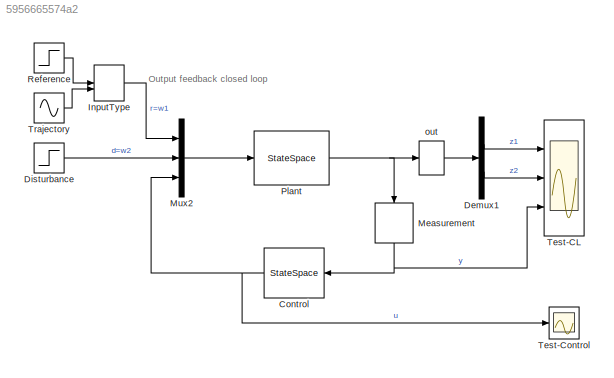
MODEL slx_5956665574a2
KIND model
CONFIG AbsTol = auto
CONFIG EnableMultiTasking = on
CONFIG FixedStep = auto
CONFIG MaxStep = auto
CONFIG MinStep = auto
CONFIG RelTol = 1e-3
CONFIG SampleTimeConstraint = Unconstrained
CONFIG Solver = VariableStepAuto
CONFIG SolverName = VariableStepAuto
CONFIG StartTime = 0.0
CONFIG StopTime = 20
BLOCK [StateSpace] Control
  A = Ksys.A
  B = Ksys.B
  C = Ksys.C
  D = Ksys.D
  Ports = [1, 1]
  X0 = xK0
BLOCK [Demux] Demux1
  DisplayOption = bar
  Outputs = 2
  Ports = [1, 2]
BLOCK [Step] Disturbance
  After = dist
  SampleTime = 0
  Time = Tdist
BLOCK [ManualSwitch] InputType
BLOCK [Selector] Measurement
  IndexOptions = Index vector (dialog)
  Indices = [4]
  InputPortWidth = 4
  OutputSizes = 1
  Ports = [1, 1]
BLOCK [Mux] Mux2
  DisplayOption = bar
  Inputs = 3
  Ports = [3, 1]
BLOCK [StateSpace] Plant
  A = P.A
  B = P.B
  C = P.C
  D = P.D
  Ports = [1, 1]
  X0 = x0
BLOCK [Step] Reference
  After = ref
  SampleTime = 0
  Time = Tref
BLOCK [Scope] Test-CL
  NumInputPorts = 3
  Ports = [3]
  ScopeSpecificationString = Simulink.scopes.TimeScopeBlockCfg('CurrentConfiguration', extmgr.ConfigurationSet(extmgr.Configuration('Core','General UI',true),extmgr.Configuration('Core','Source UI',true),extmgr.Configuration('Sources','WiredSimulink',true,'DataLoggingVariableName','simulation_test','DataLogging',true,'DataLoggingSaveFormat','StructureWithTime'),extmgr.Configuration('Visuals','Time Domain',true,'SerializedDisp...<+2792ch>
BLOCK [Scope] Test-Control
  NumInputPorts = 1
  Ports = [1]
  ScopeSpecificationString = Simulink.scopes.TimeScopeBlockCfg('CurrentConfiguration', extmgr.ConfigurationSet(extmgr.Configuration('Core','General UI',true),extmgr.Configuration('Core','Source UI',true),extmgr.Configuration('Sources','WiredSimulink',true,'DataLoggingVariableName','control_test','DataLogging',true,'DataLoggingSaveFormat','StructureWithTime'),extmgr.Configuration('Visuals','Time Domain',true,'SerializedDisplay...<+1514ch>
BLOCK [Sin] Trajectory
  Frequency = 0.5
  Ports = [0, 1]
  SampleTime = 0
BLOCK [Selector] out
  IndexOptions = Index vector (dialog)
  Indices = [1 2]
  InputPortWidth = 4
  OutputSizes = 1
  Ports = [1, 1]
ANNOTATION (root): Output feedback closed loop
NET Control:1 -> Mux2:3, Test-Control:1
LINE Demux1:1 -> Test-CL:1
LINE Demux1:2 -> Test-CL:2
LINE Disturbance:1 -> Mux2:2
LINE InputType:1 -> Mux2:1
NET Measurement:1 -> Control:1, Test-CL:3
LINE Mux2:1 -> Plant:1
NET Plant:1 -> Measurement:1, out:1
LINE Reference:1 -> InputType:1
LINE Trajectory:1 -> InputType:2
LINE out:1 -> Demux1:1
note: NET lines group one-source signal fan-out (src -> all destinations, sorted); 1:1 wires keep LINE
